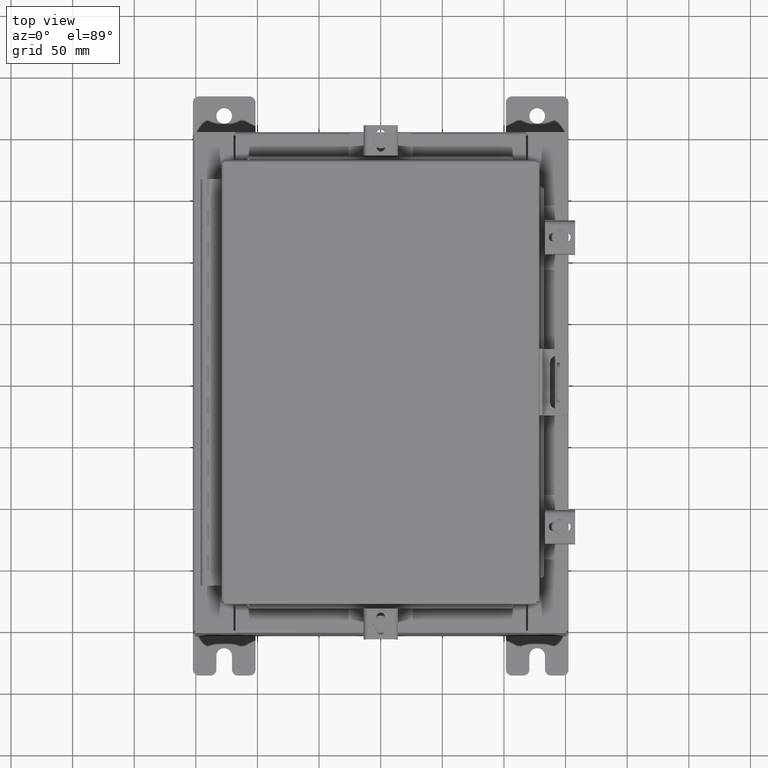
[diagram: clean part render]
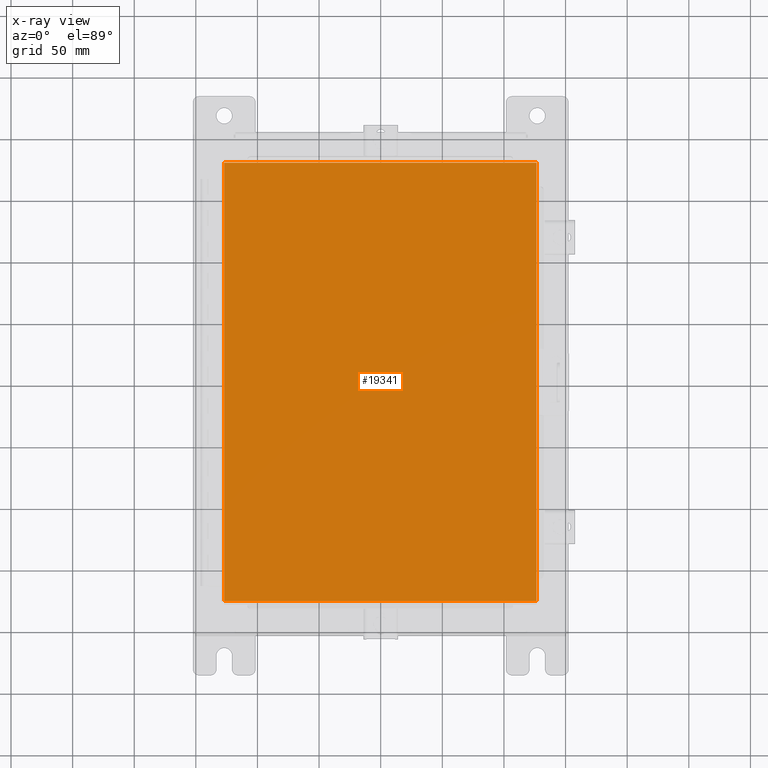
[diagram: x-ray — body ghosted, one internal face saturated and labeled with its STEP entity id]
A machine part, top view, then the same camera in x-ray: the body is ghosted and one INTERNAL B-rep face — a face not visible from any outside direction — is saturated and labeled: STEP entity #19341.
In plain terms, the highlighted planar face has unit normal (0, 0, -1).
Its self-contained STEP definition (entity closure, byte-faithful):
#130 = DIRECTION ( 'NONE',  ( -1.000000000000000000, -0.0000000000000000000, -0.0000000000000000000 ) ) ;
#144 = EDGE_LOOP ( 'NONE', ( #7904, #4900, #1756, #25082 ) ) ;
#669 = CARTESIAN_POINT ( 'NONE',  ( -4.990300000000000400, 7.006300000000000400, -0.07470000000000019700 ) ) ;
#701 = CARTESIAN_POINT ( 'NONE',  ( 4.990299999999998600, -7.006300000000000400, -0.07470000000000000300 ) ) ;
#1142 = CARTESIAN_POINT ( 'NONE',  ( 4.990299999999998600, -7.006300000000000400, -0.07469999999999965600 ) ) ;
#1756 = ORIENTED_EDGE ( 'NONE', *, *, #21104, .F. ) ;
#2692 = CARTESIAN_POINT ( 'NONE',  ( -4.990300000000000400, -7.006300000000000400, -0.07470000000000019700 ) ) ;
#3752 = VERTEX_POINT ( 'NONE', #4423 ) ;
#4047 = CARTESIAN_POINT ( 'NONE',  ( 4.990299999999998600, 7.006300000000000400, -0.07470000000000019700 ) ) ;
#4055 = VECTOR ( 'NONE', #17940, 39.37007874015748100 ) ;
#4214 = DIRECTION ( 'NONE',  ( 0.0000000000000000000, 0.0000000000000000000, -1.000000000000000000 ) ) ;
#4252 = AXIS2_PLACEMENT_3D ( 'NONE', #8696, #4214, #12723 ) ;
#4423 = CARTESIAN_POINT ( 'NONE',  ( -4.990300000000000400, 7.006299999999998600, -0.07470000000000000300 ) ) ;
#4607 = CARTESIAN_POINT ( 'NONE',  ( -4.990299999999999500, -7.006300000000000400, -0.07470000000000000300 ) ) ;
#4900 = ORIENTED_EDGE ( 'NONE', *, *, #25576, .F. ) ;
#4919 = EDGE_CURVE ( 'NONE', #11638, #3752, #16373, .T. ) ;
#6613 = VECTOR ( 'NONE', #10662, 39.37007874015748100 ) ;
#7904 = ORIENTED_EDGE ( 'NONE', *, *, #12360, .F. ) ;
#8696 = CARTESIAN_POINT ( 'NONE',  ( 0.0000000000000000000, 0.0000000000000000000, -0.07470000000000000300 ) ) ;
#10662 = DIRECTION ( 'NONE',  ( 1.000000000000000000, -0.0000000000000000000, -0.0000000000000000000 ) ) ;
#11638 = VERTEX_POINT ( 'NONE', #25714 ) ;
#12360 = EDGE_CURVE ( 'NONE', #20502, #11638, #14685, .T. ) ;
#12576 = LINE ( 'NONE', #2692, #6613 ) ;
#12723 = DIRECTION ( 'NONE',  ( -1.000000000000000000, 0.0000000000000000000, -0.0000000000000000000 ) ) ;
#12738 = VECTOR ( 'NONE', #14663, 39.37007874015748100 ) ;
#14527 = FACE_OUTER_BOUND ( 'NONE', #144, .T. ) ;
#14663 = DIRECTION ( 'NONE',  ( 0.0000000000000000000, -1.000000000000000000, 0.0000000000000000000 ) ) ;
#14685 = LINE ( 'NONE', #1142, #4055 ) ;
#16373 = LINE ( 'NONE', #4047, #20118 ) ;
#17940 = DIRECTION ( 'NONE',  ( 0.0000000000000000000, 1.000000000000000000, 0.0000000000000000000 ) ) ;
#19341 = ADVANCED_FACE ( 'NONE', ( #14527 ), #25854, .T. ) ;
#20118 = VECTOR ( 'NONE', #130, 39.37007874015748100 ) ;
#20502 = VERTEX_POINT ( 'NONE', #701 ) ;
#21104 = EDGE_CURVE ( 'NONE', #3752, #23818, #23504, .T. ) ;
#23504 = LINE ( 'NONE', #669, #12738 ) ;
#23818 = VERTEX_POINT ( 'NONE', #4607 ) ;
#25082 = ORIENTED_EDGE ( 'NONE', *, *, #4919, .F. ) ;
#25576 = EDGE_CURVE ( 'NONE', #23818, #20502, #12576, .T. ) ;
#25714 = CARTESIAN_POINT ( 'NONE',  ( 4.990299999999997700, 7.006300000000000400, -0.07470000000000000300 ) ) ;
#25854 = PLANE ( 'NONE',  #4252 ) ;